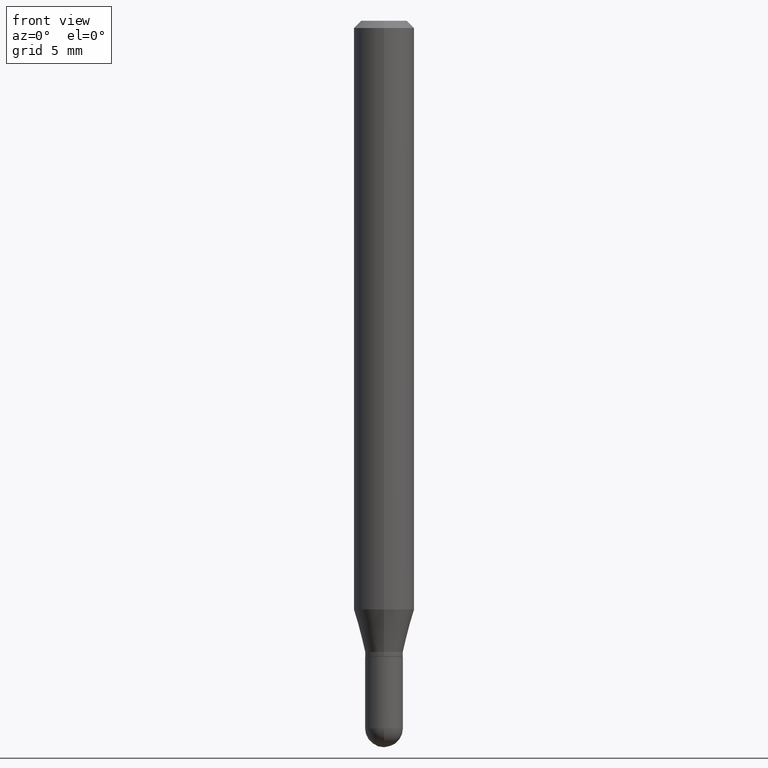
[diagram: clean part render]
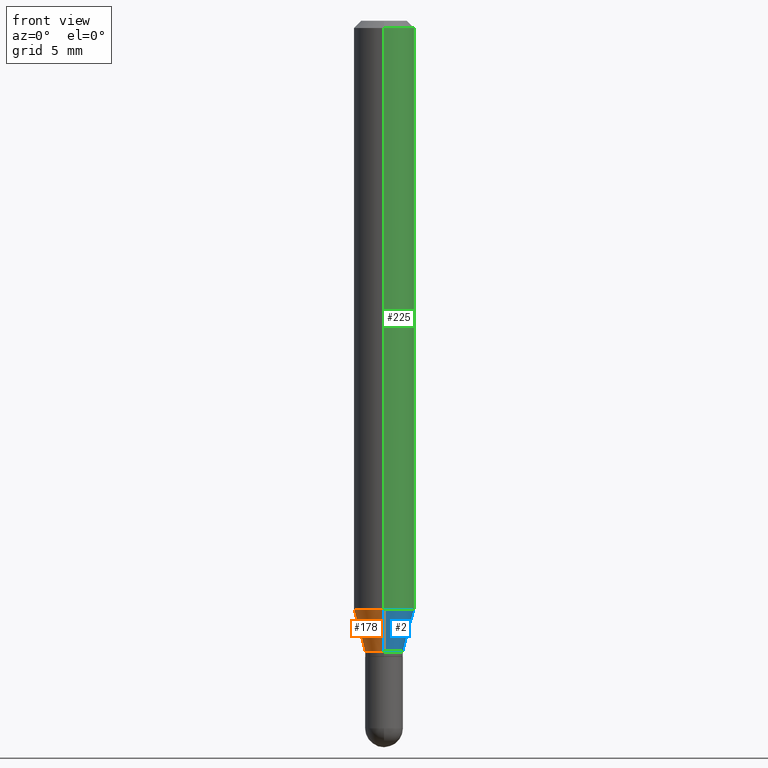
[diagram: same view with three faces highlighted in distinct colors, each labeled with its STEP entity id]
A machine part, front view with three faces highlighted in distinct colors.
Their STEP definitions:

[orange] entity #178 — the highlighted conical surface has half-angle 15 deg.
#7 = VERTEX_POINT ( 'NONE', #497 ) ;
#20 = VECTOR ( 'NONE', #24, 39.37007874015748143 ) ;
#24 = DIRECTION ( 'NONE',  ( -1.807323732225327773E-15, -0.2588190451025178529, 0.9659258262890690894 ) ) ;
#25 = EDGE_CURVE ( 'NONE', #7, #222, #458, .T. ) ;
#27 = CARTESIAN_POINT ( 'NONE',  ( 4.440892098500920012E-16, 0.06249999999999572564, -1.215483408562509915 ) ) ;
#38 = FACE_OUTER_BOUND ( 'NONE', #90, .T. ) ;
#56 = VECTOR ( 'NONE', #370, 39.37007874015748854 ) ;
#59 = CARTESIAN_POINT ( 'NONE',  ( 2.774669383143503417E-16, 0.03904999999999537313, -1.302999999999999936 ) ) ;
#78 = AXIS2_PLACEMENT_3D ( 'NONE', #361, #87, #248 ) ;
#87 = DIRECTION ( 'NONE',  ( -2.445435285253421308E-29, 3.491529342725255167E-15, 1.000000000000000000 ) ) ;
#90 = EDGE_LOOP ( 'NONE', ( #289, #387, #382, #380 ) ) ;
#99 = VERTEX_POINT ( 'NONE', #431 ) ;
#133 = LINE ( 'NONE', #59, #56 ) ;
#138 = DIRECTION ( 'NONE',  ( -6.982962677686265922E-15, -1.000000000000000000, 4.370956789862821150E-15 ) ) ;
#153 = CONICAL_SURFACE ( 'NONE', #368, 0.03904999999999992505, 0.2617993877991499074 ) ;
#160 = DIRECTION ( 'NONE',  ( -6.982962677686265133E-15, -1.000000000000000000, 0.000000000000000000 ) ) ;
#178 = ADVANCED_FACE ( 'NONE', ( #38 ), #153, .T. ) ;
#212 = EDGE_CURVE ( 'NONE', #99, #7, #434, .T. ) ;
#222 = VERTEX_POINT ( 'NONE', #448 ) ;
#248 = DIRECTION ( 'NONE',  ( -6.982962677686265133E-15, -1.000000000000000000, 0.000000000000000000 ) ) ;
#289 = ORIENTED_EDGE ( 'NONE', *, *, #397, .F. ) ;
#297 = CARTESIAN_POINT ( 'NONE',  ( -2.726846925636162763E-16, -0.03905000000000447002, -1.302999999999999936 ) ) ;
#308 = CARTESIAN_POINT ( 'NONE',  ( 3.186402176685208399E-29, -4.549462733571007534E-15, -1.302999999999999936 ) ) ;
#332 = EDGE_CURVE ( 'NONE', #485, #222, #348, .T. ) ;
#348 = CIRCLE ( 'NONE', #416, 0.06250000000000000000 ) ;
#361 = CARTESIAN_POINT ( 'NONE',  ( 3.186402176685208399E-29, -4.549462733571007534E-15, -1.302999999999999936 ) ) ;
#368 = AXIS2_PLACEMENT_3D ( 'NONE', #308, #511, #160 ) ;
#370 = DIRECTION ( 'NONE',  ( 1.839019923739597554E-15, 0.2588190451025245697, 0.9659258262890670910 ) ) ;
#380 = ORIENTED_EDGE ( 'NONE', *, *, #332, .F. ) ;
#382 = ORIENTED_EDGE ( 'NONE', *, *, #25, .T. ) ;
#387 = ORIENTED_EDGE ( 'NONE', *, *, #212, .T. ) ;
#397 = EDGE_CURVE ( 'NONE', #99, #485, #133, .T. ) ;
#401 = DIRECTION ( 'NONE',  ( -2.445435285253421308E-29, 3.491529342725255167E-15, 1.000000000000000000 ) ) ;
#416 = AXIS2_PLACEMENT_3D ( 'NONE', #484, #401, #138 ) ;
#431 = CARTESIAN_POINT ( 'NONE',  ( 3.607780740822213933E-16, 0.03904999999999537313, -1.302999999999999936 ) ) ;
#434 = CIRCLE ( 'NONE', #78, 0.03904999999999992505 ) ;
#448 = CARTESIAN_POINT ( 'NONE',  ( -4.364351673553621857E-16, -0.06250000000000427436, -1.215483408562509471 ) ) ;
#458 = LINE ( 'NONE', #297, #20 ) ;
#484 = CARTESIAN_POINT ( 'NONE',  ( 2.972386015938861663E-29, -4.243895986591712384E-15, -1.215483408562509693 ) ) ;
#485 = VERTEX_POINT ( 'NONE', #27 ) ;
#497 = CARTESIAN_POINT ( 'NONE',  ( -2.726846925636162763E-16, -0.03905000000000447002, -1.302999999999999936 ) ) ;
#511 = DIRECTION ( 'NONE',  ( -2.445435285253421308E-29, 3.491529342725255167E-15, 1.000000000000000000 ) ) ;

[blue] entity #2 — the highlighted conical surface has half-angle 15 deg.
#2 = ADVANCED_FACE ( 'NONE', ( #295 ), #354, .T. ) ;
#7 = VERTEX_POINT ( 'NONE', #497 ) ;
#20 = VECTOR ( 'NONE', #24, 39.37007874015748143 ) ;
#24 = DIRECTION ( 'NONE',  ( -1.807323732225327773E-15, -0.2588190451025178529, 0.9659258262890690894 ) ) ;
#25 = EDGE_CURVE ( 'NONE', #7, #222, #458, .T. ) ;
#27 = CARTESIAN_POINT ( 'NONE',  ( 4.440892098500920012E-16, 0.06249999999999572564, -1.215483408562509915 ) ) ;
#44 = AXIS2_PLACEMENT_3D ( 'NONE', #228, #112, #415 ) ;
#47 = EDGE_CURVE ( 'NONE', #222, #485, #377, .T. ) ;
#56 = VECTOR ( 'NONE', #370, 39.37007874015748854 ) ;
#59 = CARTESIAN_POINT ( 'NONE',  ( 2.774669383143503417E-16, 0.03904999999999537313, -1.302999999999999936 ) ) ;
#98 = ORIENTED_EDGE ( 'NONE', *, *, #25, .F. ) ;
#99 = VERTEX_POINT ( 'NONE', #431 ) ;
#112 = DIRECTION ( 'NONE',  ( -2.445435285253421308E-29, 3.491529342725255167E-15, 1.000000000000000000 ) ) ;
#133 = LINE ( 'NONE', #59, #56 ) ;
#140 = CIRCLE ( 'NONE', #177, 0.03904999999999992505 ) ;
#168 = DIRECTION ( 'NONE',  ( -2.445435285253421308E-29, 3.491529342725255167E-15, 1.000000000000000000 ) ) ;
#177 = AXIS2_PLACEMENT_3D ( 'NONE', #211, #168, #412 ) ;
#211 = CARTESIAN_POINT ( 'NONE',  ( 3.186402176685208399E-29, -4.549462733571007534E-15, -1.302999999999999936 ) ) ;
#222 = VERTEX_POINT ( 'NONE', #448 ) ;
#228 = CARTESIAN_POINT ( 'NONE',  ( 2.972386015938861663E-29, -4.243895986591712384E-15, -1.215483408562509693 ) ) ;
#246 = ORIENTED_EDGE ( 'NONE', *, *, #47, .F. ) ;
#295 = FACE_OUTER_BOUND ( 'NONE', #495, .T. ) ;
#297 = CARTESIAN_POINT ( 'NONE',  ( -2.726846925636162763E-16, -0.03905000000000447002, -1.302999999999999936 ) ) ;
#322 = AXIS2_PLACEMENT_3D ( 'NONE', #422, #344, #342 ) ;
#342 = DIRECTION ( 'NONE',  ( -6.982962677686265133E-15, -1.000000000000000000, 0.000000000000000000 ) ) ;
#344 = DIRECTION ( 'NONE',  ( -2.445435285253421308E-29, 3.491529342725255167E-15, 1.000000000000000000 ) ) ;
#354 = CONICAL_SURFACE ( 'NONE', #322, 0.03904999999999992505, 0.2617993877991499074 ) ;
#370 = DIRECTION ( 'NONE',  ( 1.839019923739597554E-15, 0.2588190451025245697, 0.9659258262890670910 ) ) ;
#374 = EDGE_CURVE ( 'NONE', #7, #99, #140, .T. ) ;
#377 = CIRCLE ( 'NONE', #44, 0.06250000000000000000 ) ;
#397 = EDGE_CURVE ( 'NONE', #99, #485, #133, .T. ) ;
#406 = ORIENTED_EDGE ( 'NONE', *, *, #374, .T. ) ;
#412 = DIRECTION ( 'NONE',  ( -6.982962677686265133E-15, -1.000000000000000000, 0.000000000000000000 ) ) ;
#415 = DIRECTION ( 'NONE',  ( -6.982962677686265922E-15, -1.000000000000000000, 4.370956789862821150E-15 ) ) ;
#422 = CARTESIAN_POINT ( 'NONE',  ( 3.186402176685208399E-29, -4.549462733571007534E-15, -1.302999999999999936 ) ) ;
#431 = CARTESIAN_POINT ( 'NONE',  ( 3.607780740822213933E-16, 0.03904999999999537313, -1.302999999999999936 ) ) ;
#443 = ORIENTED_EDGE ( 'NONE', *, *, #397, .T. ) ;
#448 = CARTESIAN_POINT ( 'NONE',  ( -4.364351673553621857E-16, -0.06250000000000427436, -1.215483408562509471 ) ) ;
#458 = LINE ( 'NONE', #297, #20 ) ;
#485 = VERTEX_POINT ( 'NONE', #27 ) ;
#495 = EDGE_LOOP ( 'NONE', ( #406, #443, #246, #98 ) ) ;
#497 = CARTESIAN_POINT ( 'NONE',  ( -2.726846925636162763E-16, -0.03905000000000447002, -1.302999999999999936 ) ) ;

[green] entity #225 — the highlighted cylindrical surface (edge-blend (fillet) strip) has radius 1.5875 mm, axis along (-0, 0, 1).
#16 = DIRECTION ( 'NONE',  ( -2.445435285253421308E-29, 3.491529342725254773E-15, 1.000000000000000000 ) ) ;
#18 = LINE ( 'NONE', #173, #280 ) ;
#27 = CARTESIAN_POINT ( 'NONE',  ( 4.440892098500920012E-16, 0.06249999999999572564, -1.215483408562509915 ) ) ;
#33 = DIRECTION ( 'NONE',  ( -2.445435285253421308E-29, 3.491529342725254773E-15, 1.000000000000000000 ) ) ;
#44 = AXIS2_PLACEMENT_3D ( 'NONE', #228, #112, #415 ) ;
#47 = EDGE_CURVE ( 'NONE', #222, #485, #377, .T. ) ;
#50 = EDGE_CURVE ( 'NONE', #182, #414, #70, .T. ) ;
#58 = ORIENTED_EDGE ( 'NONE', *, *, #426, .T. ) ;
#65 = ORIENTED_EDGE ( 'NONE', *, *, #47, .T. ) ;
#70 = CIRCLE ( 'NONE', #331, 0.06250000000000000000 ) ;
#112 = DIRECTION ( 'NONE',  ( -2.445435285253421308E-29, 3.491529342725255167E-15, 1.000000000000000000 ) ) ;
#131 = ORIENTED_EDGE ( 'NONE', *, *, #50, .F. ) ;
#149 = LINE ( 'NONE', #462, #226 ) ;
#167 = AXIS2_PLACEMENT_3D ( 'NONE', #251, #373, #375 ) ;
#173 = CARTESIAN_POINT ( 'NONE',  ( -4.364351673553916201E-16, -0.06250000000000000000, 2.182205839203284233E-16 ) ) ;
#182 = VERTEX_POINT ( 'NONE', #315 ) ;
#203 = DIRECTION ( 'NONE',  ( -2.445435285253421308E-29, 3.491529342725255167E-15, 1.000000000000000000 ) ) ;
#214 = FACE_OUTER_BOUND ( 'NONE', #494, .T. ) ;
#219 = CARTESIAN_POINT ( 'NONE',  ( 3.668152927880133994E-31, -5.237294014087885586E-17, -0.01500000000000000812 ) ) ;
#222 = VERTEX_POINT ( 'NONE', #448 ) ;
#225 = ADVANCED_FACE ( 'NONE', ( #214 ), #245, .T. ) ;
#226 = VECTOR ( 'NONE', #33, 39.37007874015748143 ) ;
#228 = CARTESIAN_POINT ( 'NONE',  ( 2.972386015938861663E-29, -4.243895986591712384E-15, -1.215483408562509693 ) ) ;
#229 = CARTESIAN_POINT ( 'NONE',  ( 4.440892098500924943E-16, 0.06249999999999993755, -0.01500000000000022669 ) ) ;
#232 = EDGE_CURVE ( 'NONE', #222, #182, #18, .T. ) ;
#245 = CYLINDRICAL_SURFACE ( 'NONE', #167, 0.06250000000000000000 ) ;
#251 = CARTESIAN_POINT ( 'NONE',  ( 0.000000000000000000, 0.000000000000000000, 0.000000000000000000 ) ) ;
#280 = VECTOR ( 'NONE', #16, 39.37007874015748143 ) ;
#315 = CARTESIAN_POINT ( 'NONE',  ( -4.364351673553912750E-16, -0.06250000000000005551, -0.01499999999999979128 ) ) ;
#331 = AXIS2_PLACEMENT_3D ( 'NONE', #219, #203, #428 ) ;
#337 = ORIENTED_EDGE ( 'NONE', *, *, #232, .F. ) ;
#373 = DIRECTION ( 'NONE',  ( -2.445435285253421308E-29, 3.491529342725255167E-15, 1.000000000000000000 ) ) ;
#375 = DIRECTION ( 'NONE',  ( -6.982962677686265922E-15, -1.000000000000000000, 3.491529342725254773E-15 ) ) ;
#377 = CIRCLE ( 'NONE', #44, 0.06250000000000000000 ) ;
#414 = VERTEX_POINT ( 'NONE', #229 ) ;
#415 = DIRECTION ( 'NONE',  ( -6.982962677686265922E-15, -1.000000000000000000, 4.370956789862821150E-15 ) ) ;
#426 = EDGE_CURVE ( 'NONE', #485, #414, #149, .T. ) ;
#428 = DIRECTION ( 'NONE',  ( -6.982962677686265922E-15, -1.000000000000000000, 3.483106191921935554E-15 ) ) ;
#448 = CARTESIAN_POINT ( 'NONE',  ( -4.364351673553621857E-16, -0.06250000000000427436, -1.215483408562509471 ) ) ;
#462 = CARTESIAN_POINT ( 'NONE',  ( 4.440892098500625669E-16, 0.06250000000000000000, -2.182205839203284233E-16 ) ) ;
#485 = VERTEX_POINT ( 'NONE', #27 ) ;
#494 = EDGE_LOOP ( 'NONE', ( #65, #58, #131, #337 ) ) ;